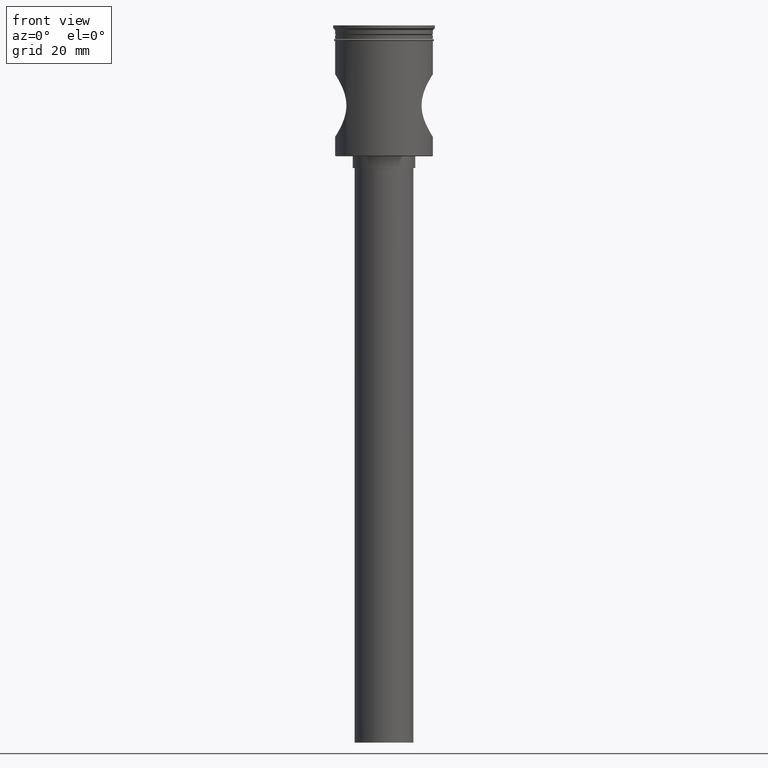
[diagram: clean part render]
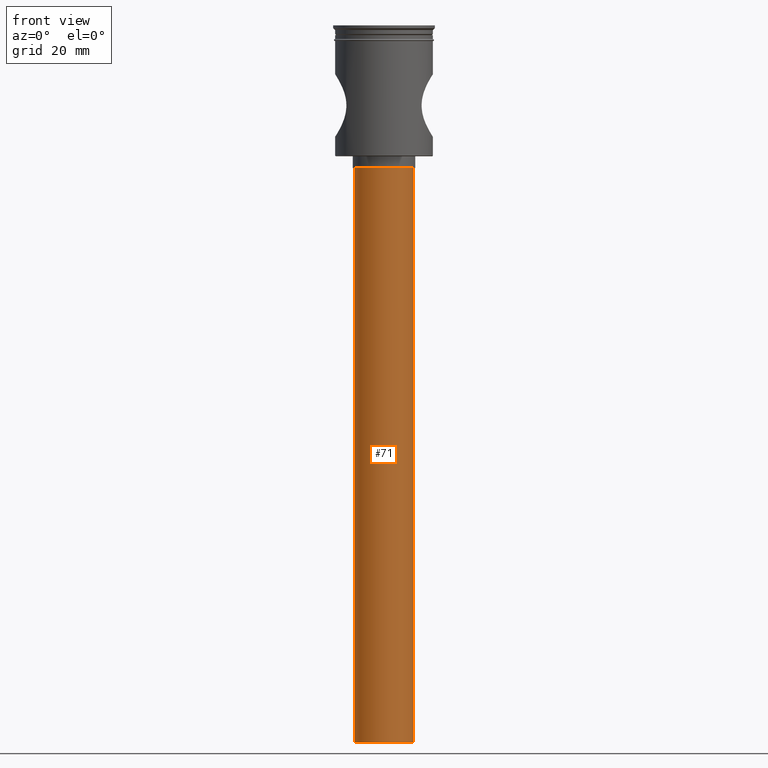
[diagram: same view with one face highlighted and labeled with its STEP entity id]
A machine part, front view. The second image highlights one B-rep face of the part: STEP entity #71.
In plain terms, the highlighted cylindrical surface (edge-blend (fillet) strip) has radius 7.5 mm, axis along (-0, -0, 1).
Its self-contained STEP definition (entity closure, byte-faithful):
#71 = ADVANCED_FACE ( 'NONE', ( #1300 ), #1180, .T. ) ;
#92 = CARTESIAN_POINT ( 'NONE',  ( 0.000000000000000000, 0.000000000000000000, -183.5000000000000000 ) ) ;
#132 = VECTOR ( 'NONE', #826, 1000.000000000000000 ) ;
#185 = EDGE_LOOP ( 'NONE', ( #381, #734, #196, #799 ) ) ;
#196 = ORIENTED_EDGE ( 'NONE', *, *, #228, .T. ) ;
#202 = LINE ( 'NONE', #939, #132 ) ;
#228 = EDGE_CURVE ( 'NONE', #597, #1298, #1349, .T. ) ;
#279 = CARTESIAN_POINT ( 'NONE',  ( -7.500000000000000000, 9.184850993605147944E-16, -36.50000000000000711 ) ) ;
#292 = VECTOR ( 'NONE', #1019, 1000.000000000000000 ) ;
#381 = ORIENTED_EDGE ( 'NONE', *, *, #1192, .F. ) ;
#431 = EDGE_CURVE ( 'NONE', #1298, #889, #874, .T. ) ;
#445 = DIRECTION ( 'NONE',  ( -0.000000000000000000, -0.000000000000000000, 1.000000000000000000 ) ) ;
#449 = AXIS2_PLACEMENT_3D ( 'NONE', #1239, #1125, #1069 ) ;
#451 = CARTESIAN_POINT ( 'NONE',  ( 0.000000000000000000, 0.000000000000000000, -36.50000000000000711 ) ) ;
#497 = CARTESIAN_POINT ( 'NONE',  ( 7.500000000000000000, 0.000000000000000000, -183.5000000000000000 ) ) ;
#597 = VERTEX_POINT ( 'NONE', #497 ) ;
#727 = CARTESIAN_POINT ( 'NONE',  ( -7.500000000000000000, 9.184850993605147944E-16, -183.5000000000000000 ) ) ;
#734 = ORIENTED_EDGE ( 'NONE', *, *, #1420, .F. ) ;
#743 = AXIS2_PLACEMENT_3D ( 'NONE', #451, #1157, #828 ) ;
#759 = CARTESIAN_POINT ( 'NONE',  ( 7.500000000000000000, 0.000000000000000000, -183.5000000000000000 ) ) ;
#799 = ORIENTED_EDGE ( 'NONE', *, *, #431, .T. ) ;
#826 = DIRECTION ( 'NONE',  ( -0.000000000000000000, -0.000000000000000000, 1.000000000000000000 ) ) ;
#828 = DIRECTION ( 'NONE',  ( -1.000000000000000000, 0.000000000000000000, 0.000000000000000000 ) ) ;
#836 = DIRECTION ( 'NONE',  ( 1.000000000000000000, 0.000000000000000000, 0.000000000000000000 ) ) ;
#874 = CIRCLE ( 'NONE', #743, 7.500000000000000000 ) ;
#889 = VERTEX_POINT ( 'NONE', #279 ) ;
#906 = AXIS2_PLACEMENT_3D ( 'NONE', #92, #445, #836 ) ;
#939 = CARTESIAN_POINT ( 'NONE',  ( -7.500000000000000000, 9.184850993605147944E-16, -183.5000000000000000 ) ) ;
#974 = CIRCLE ( 'NONE', #449, 7.500000000000000000 ) ;
#1003 = CARTESIAN_POINT ( 'NONE',  ( 7.500000000000000000, 0.000000000000000000, -36.50000000000000711 ) ) ;
#1019 = DIRECTION ( 'NONE',  ( -0.000000000000000000, -0.000000000000000000, 1.000000000000000000 ) ) ;
#1020 = VERTEX_POINT ( 'NONE', #727 ) ;
#1069 = DIRECTION ( 'NONE',  ( -1.000000000000000000, 0.000000000000000000, 0.000000000000000000 ) ) ;
#1125 = DIRECTION ( 'NONE',  ( 0.000000000000000000, 0.000000000000000000, -1.000000000000000000 ) ) ;
#1157 = DIRECTION ( 'NONE',  ( 0.000000000000000000, 0.000000000000000000, -1.000000000000000000 ) ) ;
#1180 = CYLINDRICAL_SURFACE ( 'NONE', #906, 7.500000000000000000 ) ;
#1192 = EDGE_CURVE ( 'NONE', #1020, #889, #202, .T. ) ;
#1239 = CARTESIAN_POINT ( 'NONE',  ( 0.000000000000000000, 0.000000000000000000, -183.5000000000000000 ) ) ;
#1298 = VERTEX_POINT ( 'NONE', #1003 ) ;
#1300 = FACE_OUTER_BOUND ( 'NONE', #185, .T. ) ;
#1349 = LINE ( 'NONE', #759, #292 ) ;
#1420 = EDGE_CURVE ( 'NONE', #597, #1020, #974, .T. ) ;